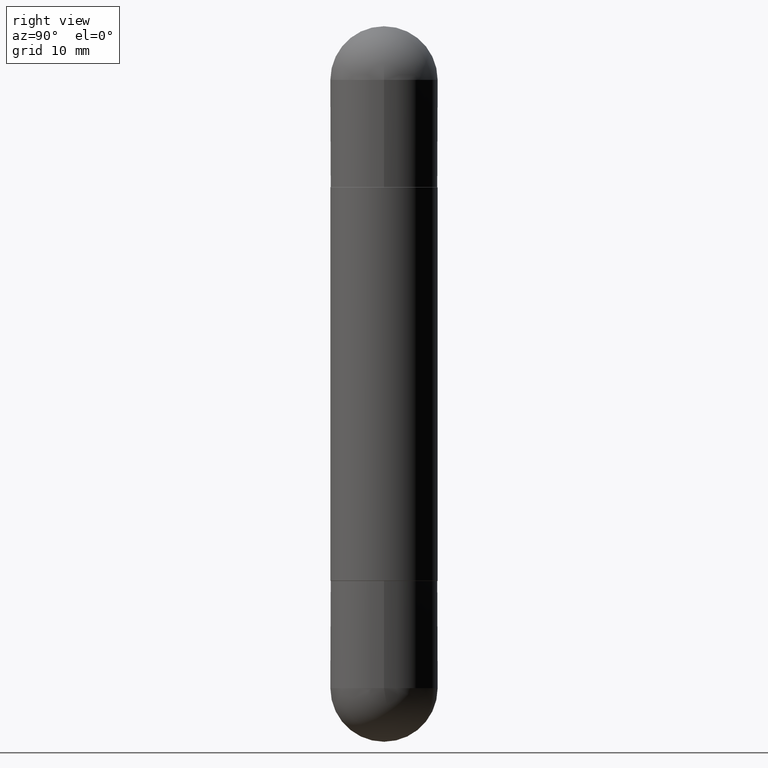
[diagram: clean part render]
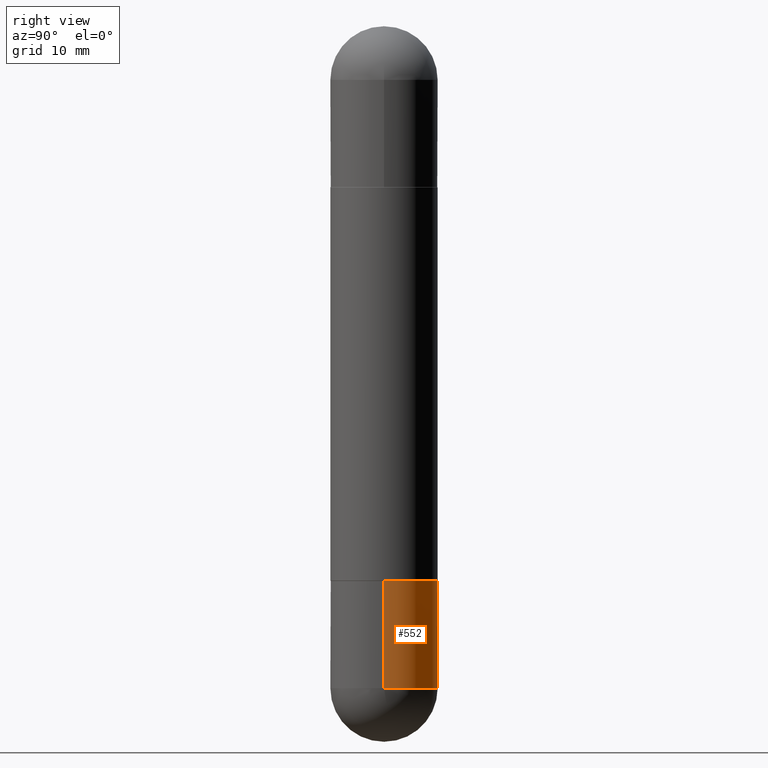
[diagram: same view with one face highlighted and labeled with its STEP entity id]
A machine part, right view. The second image highlights one B-rep face of the part: STEP entity #552.
In plain terms, the highlighted cylindrical surface (partial cylindrical patch) has radius 4.7625 mm, axis along (-0, 0, 1).
Its self-contained STEP definition (entity closure, byte-faithful):
#1 = CARTESIAN_POINT ( 'NONE',  ( 5.655146614303128380E-29, -8.074050596074775072E-15, -2.312500000000000000 ) ) ;
#14 = EDGE_CURVE ( 'NONE', #319, #111, #464, .T. ) ;
#53 = CARTESIAN_POINT ( 'NONE',  ( 0.1875000000000000555, -8.729576217442571356E-15, -2.312500000000000000 ) ) ;
#76 = DIRECTION ( 'NONE',  ( -2.445468806185136877E-29, 3.491481338843145188E-15, 1.000000000000000000 ) ) ;
#92 = EDGE_CURVE ( 'NONE', #111, #619, #310, .T. ) ;
#102 = VERTEX_POINT ( 'NONE', #467 ) ;
#111 = VERTEX_POINT ( 'NONE', #145 ) ;
#129 = DIRECTION ( 'NONE',  ( 1.000000000000000000, -6.982962677686270655E-15, 0.000000000000000000 ) ) ;
#145 = CARTESIAN_POINT ( 'NONE',  ( 0.1875000000000000278, -8.075796336744191053E-15, -1.937999999999999945 ) ) ;
#170 = VERTEX_POINT ( 'NONE', #412 ) ;
#183 = ORIENTED_EDGE ( 'NONE', *, *, #92, .F. ) ;
#193 = FACE_OUTER_BOUND ( 'NONE', #787, .T. ) ;
#201 = DIRECTION ( 'NONE',  ( 1.000000000000000000, -6.982962677686266711E-15, 0.000000000000000000 ) ) ;
#205 = CYLINDRICAL_SURFACE ( 'NONE', #312, 0.1875000000000000555 ) ;
#208 = AXIS2_PLACEMENT_3D ( 'NONE', #1, #508, #129 ) ;
#213 = CARTESIAN_POINT ( 'NONE',  ( 4.739318546386794397E-29, -6.766490834678016045E-15, -1.937999999999999945 ) ) ;
#238 = CARTESIAN_POINT ( 'NONE',  ( 5.655146614303128380E-29, -8.074050596074775072E-15, -2.312500000000000000 ) ) ;
#243 = AXIS2_PLACEMENT_3D ( 'NONE', #213, #258, #201 ) ;
#254 = CARTESIAN_POINT ( 'NONE',  ( 0.1875000000000000555, -1.309305502066175205E-15, 9.142831454617382414E-30 ) ) ;
#258 = DIRECTION ( 'NONE',  ( -2.445468806185136597E-29, 3.491481338843145583E-15, 1.000000000000000000 ) ) ;
#298 = ORIENTED_EDGE ( 'NONE', *, *, #562, .T. ) ;
#310 = CIRCLE ( 'NONE', #243, 0.1875000000000000278 ) ;
#312 = AXIS2_PLACEMENT_3D ( 'NONE', #462, #774, #316 ) ;
#316 = DIRECTION ( 'NONE',  ( 1.000000000000000000, -6.982962677686265922E-15, 4.876176775795935793E-29 ) ) ;
#319 = VERTEX_POINT ( 'NONE', #53 ) ;
#327 = EDGE_CURVE ( 'NONE', #170, #619, #694, .T. ) ;
#359 = CARTESIAN_POINT ( 'NONE',  ( -0.1875000000000000555, 1.332267629550188243E-15, -9.223003294227950793E-30 ) ) ;
#367 = DIRECTION ( 'NONE',  ( -2.445468806185136877E-29, 3.491481338843145188E-15, 1.000000000000000000 ) ) ;
#400 = EDGE_CURVE ( 'NONE', #319, #102, #710, .T. ) ;
#412 = CARTESIAN_POINT ( 'NONE',  ( -0.1875000000000000555, -6.088003085826207710E-15, -2.312500000000000000 ) ) ;
#432 = AXIS2_PLACEMENT_3D ( 'NONE', #238, #634, #749 ) ;
#462 = CARTESIAN_POINT ( 'NONE',  ( 0.000000000000000000, 0.000000000000000000, 0.000000000000000000 ) ) ;
#463 = ORIENTED_EDGE ( 'NONE', *, *, #400, .T. ) ;
#464 = LINE ( 'NONE', #254, #482 ) ;
#467 = CARTESIAN_POINT ( 'NONE',  ( 1.309305502066231017E-15, 0.1874999999999918954, -2.312500000000000444 ) ) ;
#482 = VECTOR ( 'NONE', #76, 39.37007874015748143 ) ;
#485 = ORIENTED_EDGE ( 'NONE', *, *, #14, .F. ) ;
#494 = ORIENTED_EDGE ( 'NONE', *, *, #327, .T. ) ;
#508 = DIRECTION ( 'NONE',  ( -2.445468806185136597E-29, 3.491481338843145583E-15, 1.000000000000000000 ) ) ;
#552 = ADVANCED_FACE ( 'NONE', ( #193 ), #205, .T. ) ;
#562 = EDGE_CURVE ( 'NONE', #102, #170, #738, .T. ) ;
#610 = CARTESIAN_POINT ( 'NONE',  ( -0.1875000000000000278, -6.088003085826206921E-15, -1.937999999999999945 ) ) ;
#619 = VERTEX_POINT ( 'NONE', #610 ) ;
#634 = DIRECTION ( 'NONE',  ( -2.445468806185136597E-29, 3.491481338843145583E-15, 1.000000000000000000 ) ) ;
#694 = LINE ( 'NONE', #359, #709 ) ;
#709 = VECTOR ( 'NONE', #367, 39.37007874015748143 ) ;
#710 = CIRCLE ( 'NONE', #432, 0.1875000000000000555 ) ;
#738 = CIRCLE ( 'NONE', #208, 0.1875000000000000555 ) ;
#749 = DIRECTION ( 'NONE',  ( 1.000000000000000000, -6.982962677686270655E-15, 0.000000000000000000 ) ) ;
#774 = DIRECTION ( 'NONE',  ( -2.445468806185136597E-29, 3.491481338843145583E-15, 1.000000000000000000 ) ) ;
#787 = EDGE_LOOP ( 'NONE', ( #298, #494, #183, #485, #463 ) ) ;